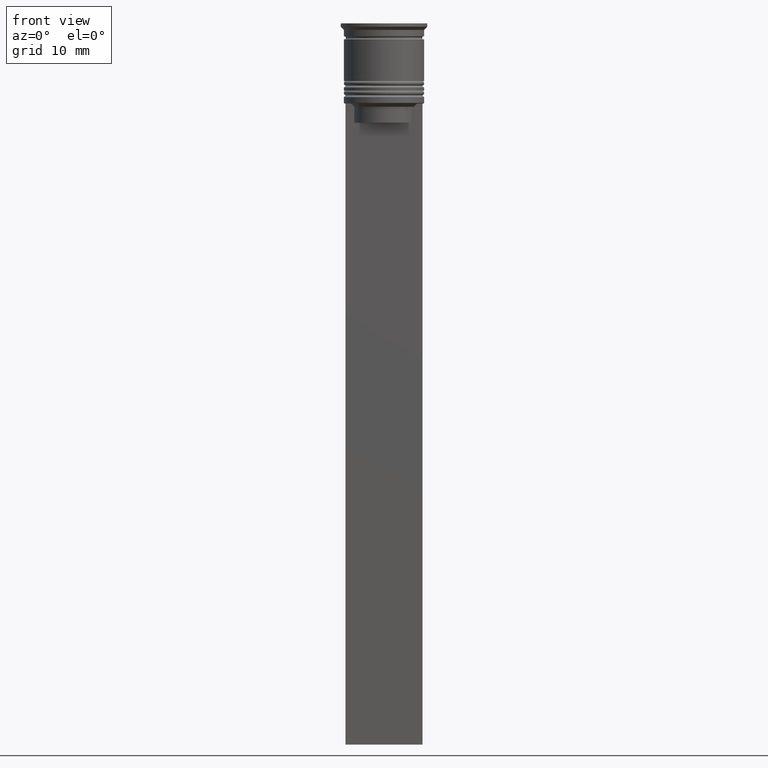
[diagram: clean part render]
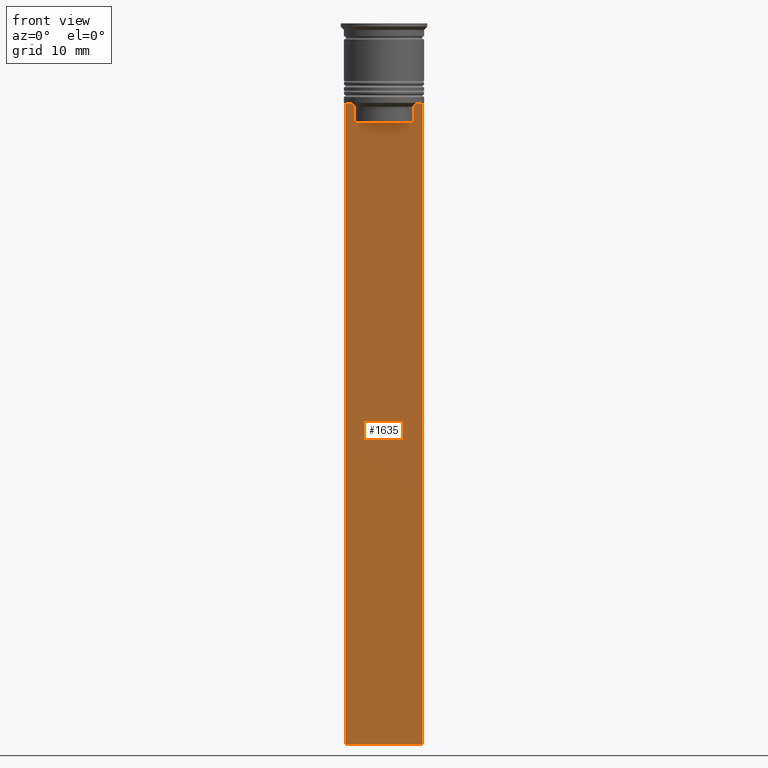
[diagram: same view with one face highlighted and labeled with its STEP entity id]
A machine part, front view. The second image highlights one B-rep face of the part: STEP entity #1635.
In plain terms, the highlighted planar face has unit normal (0, -1, -0).
Its self-contained STEP definition (entity closure, byte-faithful):
#35 = VERTEX_POINT ( 'NONE', #336 ) ;
#69 = ORIENTED_EDGE ( 'NONE', *, *, #1971, .F. ) ;
#111 = ORIENTED_EDGE ( 'NONE', *, *, #1494, .F. ) ;
#129 = CARTESIAN_POINT ( 'NONE',  ( 5.125670687822231564, -0.5000000000000017764, -12.50000000000000000 ) ) ;
#136 = CARTESIAN_POINT ( 'NONE',  ( 6.000000000000016875, -0.5000000000000017764, -112.5000000000000000 ) ) ;
#145 = LINE ( 'NONE', #1889, #1038 ) ;
#209 = VECTOR ( 'NONE', #616, 1000.000000000000000 ) ;
#210 = VECTOR ( 'NONE', #2264, 1000.000000000000000 ) ;
#279 = ORIENTED_EDGE ( 'NONE', *, *, #1074, .F. ) ;
#281 = EDGE_CURVE ( 'NONE', #964, #1792, #514, .T. ) ;
#290 = VECTOR ( 'NONE', #1649, 1000.000000000000000 ) ;
#319 = DIRECTION ( 'NONE',  ( 0.000000000000000000, 0.000000000000000000, -1.000000000000000000 ) ) ;
#328 = DIRECTION ( 'NONE',  ( -1.000000000000000000, 0.000000000000000000, 0.000000000000000000 ) ) ;
#336 = CARTESIAN_POINT ( 'NONE',  ( 4.623040125285526436, -0.5000000000000017764, -13.00000000000000178 ) ) ;
#433 = CARTESIAN_POINT ( 'NONE',  ( 0.000000000000000000, -0.5000000000000022204, -15.50000000000000000 ) ) ;
#434 = DIRECTION ( 'NONE',  ( 1.000000000000000000, 0.000000000000000000, 0.000000000000000000 ) ) ;
#437 = DIRECTION ( 'NONE',  ( 0.000000000000000000, 0.000000000000000000, -1.000000000000000000 ) ) ;
#449 = CARTESIAN_POINT ( 'NONE',  ( -4.623040125285526436, -0.5000000000000022204, -15.50000000000000000 ) ) ;
#459 = CARTESIAN_POINT ( 'NONE',  ( -4.958169823806760412, -0.5000000000000017764, -12.66670956677067927 ) ) ;
#477 = VECTOR ( 'NONE', #328, 1000.000000000000000 ) ;
#514 = LINE ( 'NONE', #1407, #210 ) ;
#610 = CARTESIAN_POINT ( 'NONE',  ( -4.623040125285526436, -0.5000000000000017764, -13.00000000000000178 ) ) ;
#616 = DIRECTION ( 'NONE',  ( 1.000000000000000000, 0.000000000000000000, 0.000000000000000000 ) ) ;
#673 = FACE_OUTER_BOUND ( 'NONE', #2341, .T. ) ;
#698 = VECTOR ( 'NONE', #1552, 1000.000000000000000 ) ;
#721 = VERTEX_POINT ( 'NONE', #977 ) ;
#736 = VECTOR ( 'NONE', #437, 1000.000000000000000 ) ;
#754 = LINE ( 'NONE', #830, #209 ) ;
#769 = LINE ( 'NONE', #2214, #917 ) ;
#815 = CARTESIAN_POINT ( 'NONE',  ( 4.958169719475987947, -0.5000000000000017764, -12.66670967060858111 ) ) ;
#830 = CARTESIAN_POINT ( 'NONE',  ( 6.000000000000016875, -0.5000000000000017764, -12.50000000000000000 ) ) ;
#832 = VERTEX_POINT ( 'NONE', #1449 ) ;
#842 = AXIS2_PLACEMENT_3D ( 'NONE', #1445, #2128, #319 ) ;
#848 = PLANE ( 'NONE',  #842 ) ;
#862 = CARTESIAN_POINT ( 'NONE',  ( 6.000000000000016875, -0.5000000000000017764, -112.5000000000000000 ) ) ;
#917 = VECTOR ( 'NONE', #434, 1000.000000000000000 ) ;
#920 = CARTESIAN_POINT ( 'NONE',  ( 6.000000000000016875, -0.5000000000000017764, -0.4584054212077061097 ) ) ;
#925 = VERTEX_POINT ( 'NONE', #1810 ) ;
#964 = VERTEX_POINT ( 'NONE', #610 ) ;
#977 = CARTESIAN_POINT ( 'NONE',  ( -5.999999999999983125, -0.5000000000000017764, -112.5000000000000000 ) ) ;
#983 = LINE ( 'NONE', #433, #698 ) ;
#987 = EDGE_CURVE ( 'NONE', #1318, #832, #769, .T. ) ;
#1038 = VECTOR ( 'NONE', #1897, 1000.000000000000000 ) ;
#1056 = CARTESIAN_POINT ( 'NONE',  ( -5.999999999999983125, -0.5000000000000017764, -12.50000000000000000 ) ) ;
#1074 = EDGE_CURVE ( 'NONE', #2039, #35, #145, .T. ) ;
#1113 = ORIENTED_EDGE ( 'NONE', *, *, #281, .F. ) ;
#1175 = CARTESIAN_POINT ( 'NONE',  ( 4.790630799407577634, -0.5000000000000017764, -12.83338098686238915 ) ) ;
#1214 = VERTEX_POINT ( 'NONE', #862 ) ;
#1318 = VERTEX_POINT ( 'NONE', #1056 ) ;
#1345 = ORIENTED_EDGE ( 'NONE', *, *, #2159, .T. ) ;
#1390 = ORIENTED_EDGE ( 'NONE', *, *, #1874, .F. ) ;
#1402 = ORIENTED_EDGE ( 'NONE', *, *, #2265, .F. ) ;
#1407 = CARTESIAN_POINT ( 'NONE',  ( -4.623040125285526436, -0.5000000000000017764, 0.000000000000000000 ) ) ;
#1445 = CARTESIAN_POINT ( 'NONE',  ( 6.000000000000016875, -0.5000000000000017764, -0.4584054212077061097 ) ) ;
#1449 = CARTESIAN_POINT ( 'NONE',  ( -5.125670687822231564, -0.5000000000000017764, -12.50000000000000000 ) ) ;
#1494 = EDGE_CURVE ( 'NONE', #1910, #925, #754, .T. ) ;
#1545 = CARTESIAN_POINT ( 'NONE',  ( -4.790630915080664742, -0.5000000000000017764, -12.83338087185995491 ) ) ;
#1552 = DIRECTION ( 'NONE',  ( 1.000000000000000000, 0.000000000000000000, 0.000000000000000000 ) ) ;
#1635 = ADVANCED_FACE ( 'NONE', ( #673 ), #848, .T. ) ;
#1636 = LINE ( 'NONE', #920, #290 ) ;
#1649 = DIRECTION ( 'NONE',  ( 0.000000000000000000, 0.000000000000000000, -1.000000000000000000 ) ) ;
#1699 = CARTESIAN_POINT ( 'NONE',  ( -5.999999999999983125, -0.5000000000000017764, -0.4584054212077061097 ) ) ;
#1746 = CARTESIAN_POINT ( 'NONE',  ( 5.125670687822231564, -0.5000000000000017764, -12.50000000000000000 ) ) ;
#1762 = CARTESIAN_POINT ( 'NONE',  ( 4.623040125285526436, -0.5000000000000017764, -13.00000000000000178 ) ) ;
#1792 = VERTEX_POINT ( 'NONE', #449 ) ;
#1810 = CARTESIAN_POINT ( 'NONE',  ( 6.000000000000016875, -0.5000000000000017764, -12.50000000000000000 ) ) ;
#1830 = LINE ( 'NONE', #136, #477 ) ;
#1874 = EDGE_CURVE ( 'NONE', #1792, #2039, #983, .T. ) ;
#1889 = CARTESIAN_POINT ( 'NONE',  ( 4.623040125285526436, -0.5000000000000017764, 0.000000000000000000 ) ) ;
#1897 = DIRECTION ( 'NONE',  ( -0.000000000000000000, -0.000000000000000000, 1.000000000000000000 ) ) ;
#1909 = ORIENTED_EDGE ( 'NONE', *, *, #987, .F. ) ;
#1910 = VERTEX_POINT ( 'NONE', #129 ) ;
#1963 = B_SPLINE_CURVE_WITH_KNOTS ( 'NONE', 3,
 ( #2088, #459, #1545, #2262 ),
 .UNSPECIFIED., .F., .F.,
 ( 4, 4 ),
 ( 0.008759809102772709091, 0.009468778395565353653 ),
 .UNSPECIFIED. ) ;
#1971 = EDGE_CURVE ( 'NONE', #1214, #721, #1830, .T. ) ;
#2039 = VERTEX_POINT ( 'NONE', #2184 ) ;
#2051 = EDGE_CURVE ( 'NONE', #925, #1214, #1636, .T. ) ;
#2057 = ORIENTED_EDGE ( 'NONE', *, *, #2248, .F. ) ;
#2061 = LINE ( 'NONE', #1699, #736 ) ;
#2088 = CARTESIAN_POINT ( 'NONE',  ( -5.125670687822231564, -0.5000000000000017764, -12.50000000000000000 ) ) ;
#2127 = B_SPLINE_CURVE_WITH_KNOTS ( 'NONE', 3,
 ( #1762, #1175, #815, #1746 ),
 .UNSPECIFIED., .F., .F.,
 ( 4, 4 ),
 ( 0.02203698174624552780, 0.02275222543365896383 ),
 .UNSPECIFIED. ) ;
#2128 = DIRECTION ( 'NONE',  ( 0.000000000000000000, -1.000000000000000000, -0.000000000000000000 ) ) ;
#2159 = EDGE_CURVE ( 'NONE', #1318, #721, #2061, .T. ) ;
#2184 = CARTESIAN_POINT ( 'NONE',  ( 4.623040125285526436, -0.5000000000000022204, -15.50000000000000000 ) ) ;
#2190 = ORIENTED_EDGE ( 'NONE', *, *, #2051, .F. ) ;
#2214 = CARTESIAN_POINT ( 'NONE',  ( 6.000000000000016875, -0.5000000000000017764, -12.50000000000000000 ) ) ;
#2248 = EDGE_CURVE ( 'NONE', #35, #1910, #2127, .T. ) ;
#2262 = CARTESIAN_POINT ( 'NONE',  ( -4.623040125285526436, -0.5000000000000017764, -13.00000000000000178 ) ) ;
#2264 = DIRECTION ( 'NONE',  ( 0.000000000000000000, 0.000000000000000000, -1.000000000000000000 ) ) ;
#2265 = EDGE_CURVE ( 'NONE', #832, #964, #1963, .T. ) ;
#2341 = EDGE_LOOP ( 'NONE', ( #1402, #1909, #1345, #69, #2190, #111, #2057, #279, #1390, #1113 ) ) ;